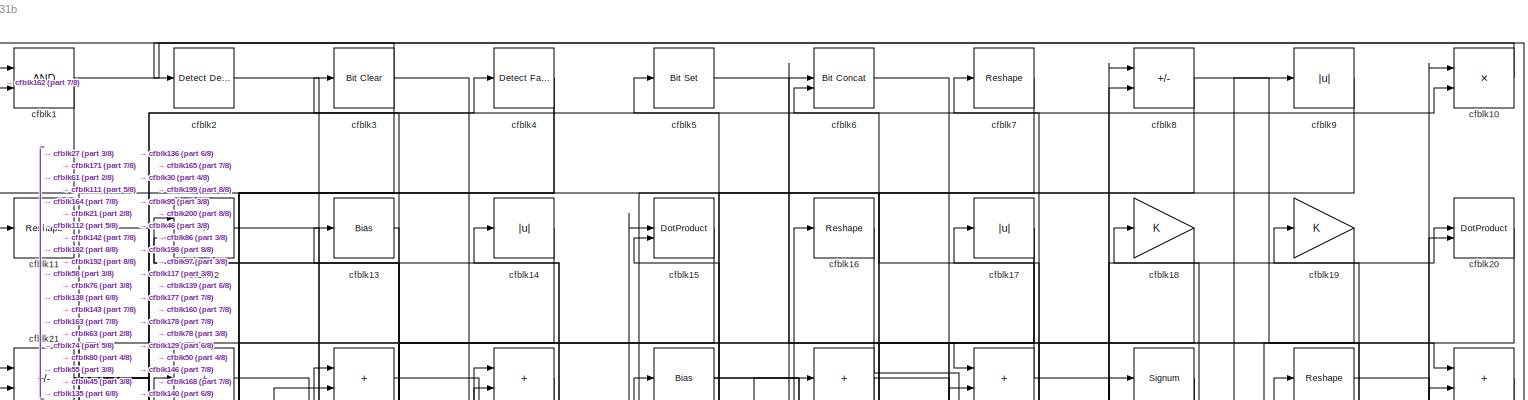
[diagram: root canvas - part 1/8, full width, top band]
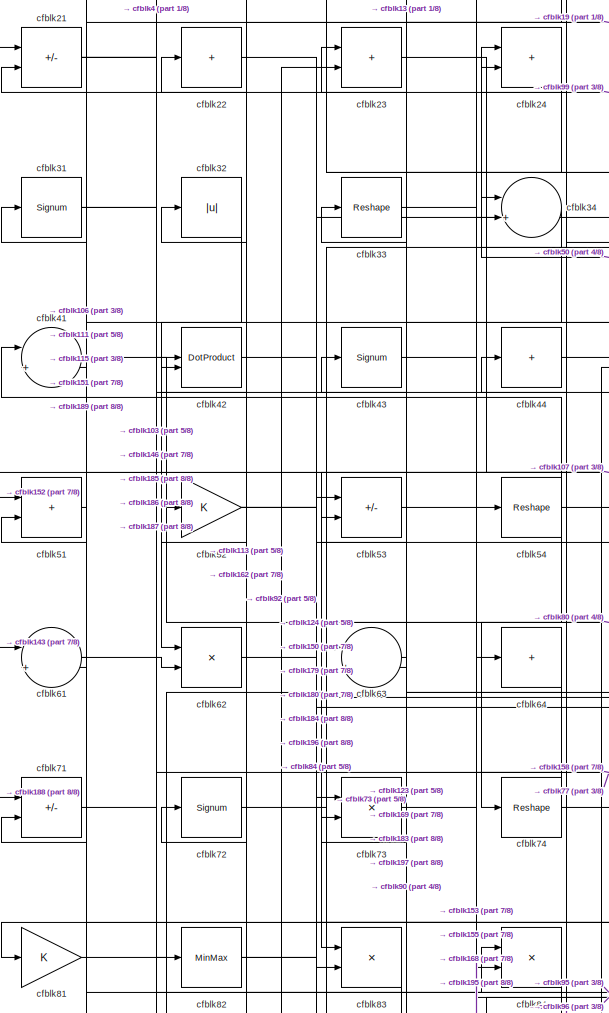
[diagram: root canvas - part 2/8, top left region]
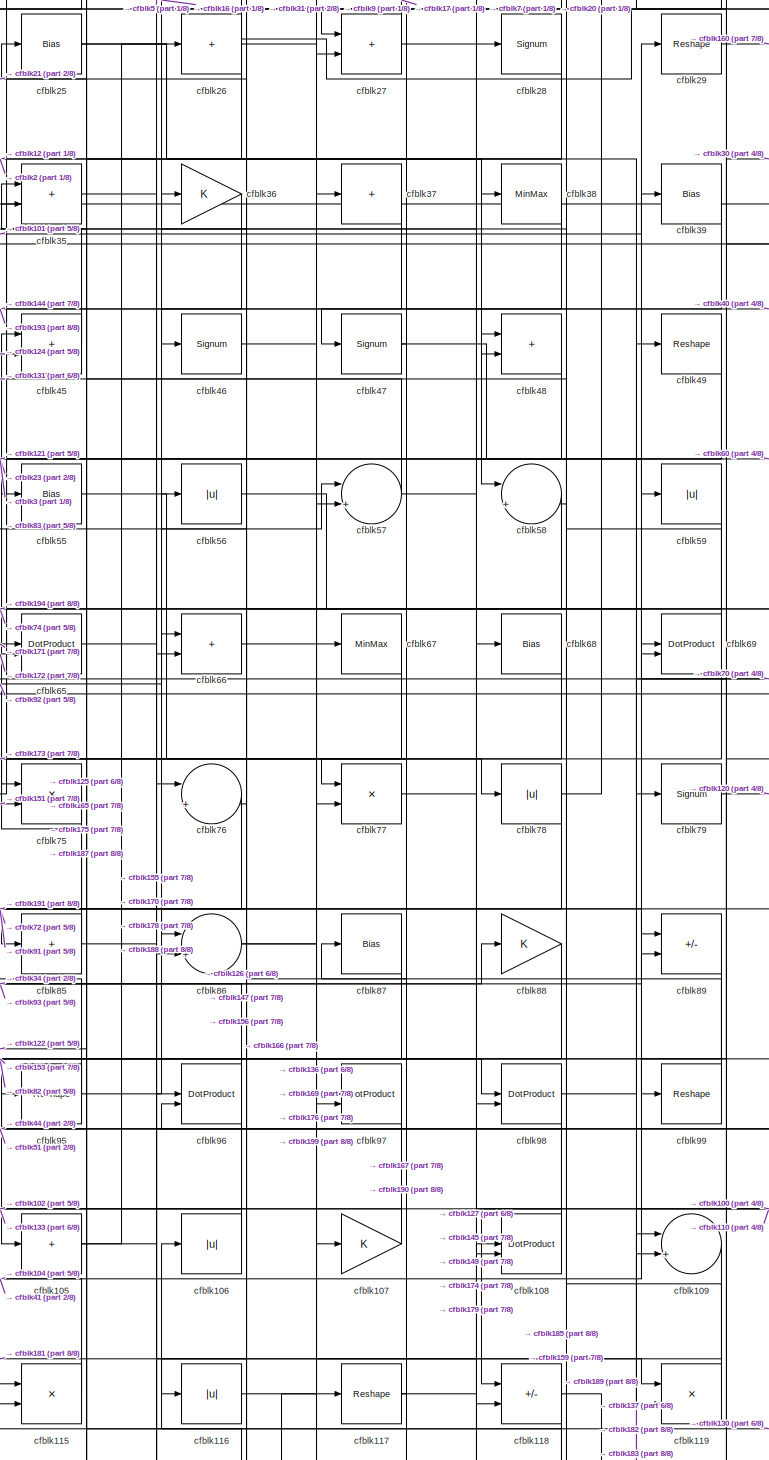
[diagram: root canvas - part 3/8, central region]
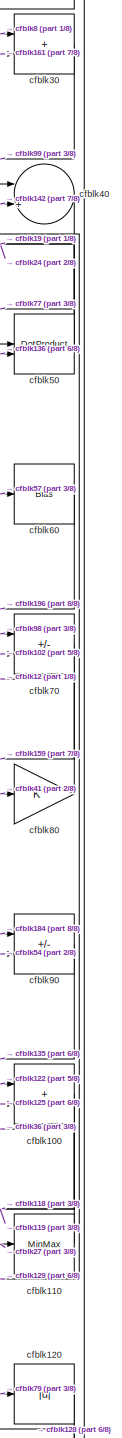
[diagram: root canvas - part 4/8, middle right region]
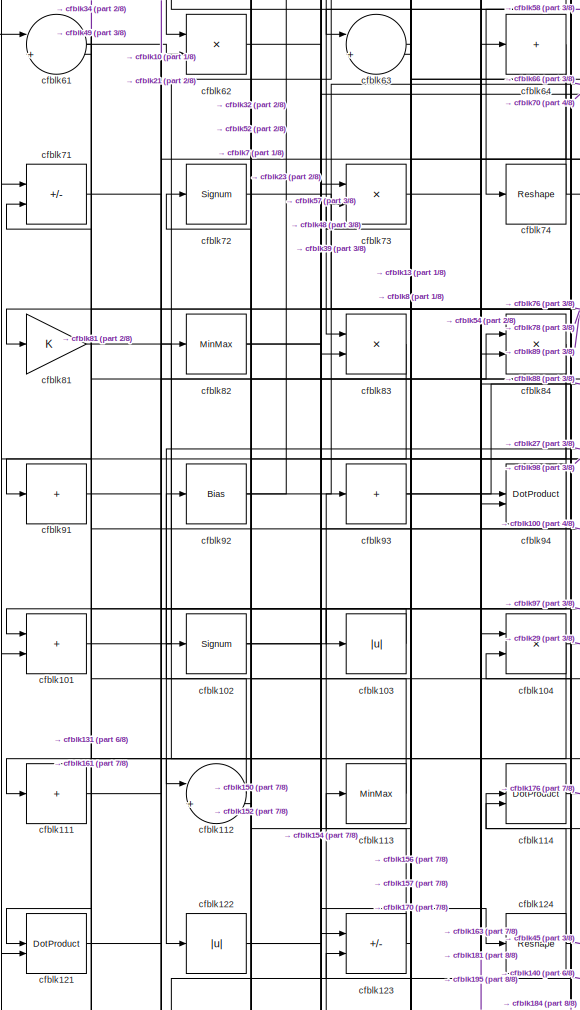
[diagram: root canvas - part 5/8, middle left region]
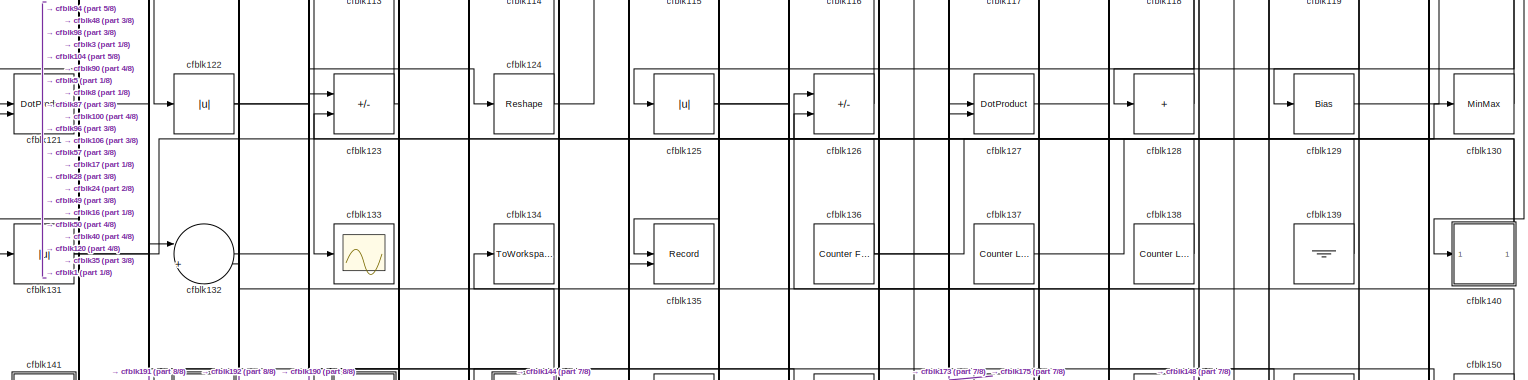
[diagram: root canvas - part 6/8, full width, middle band]
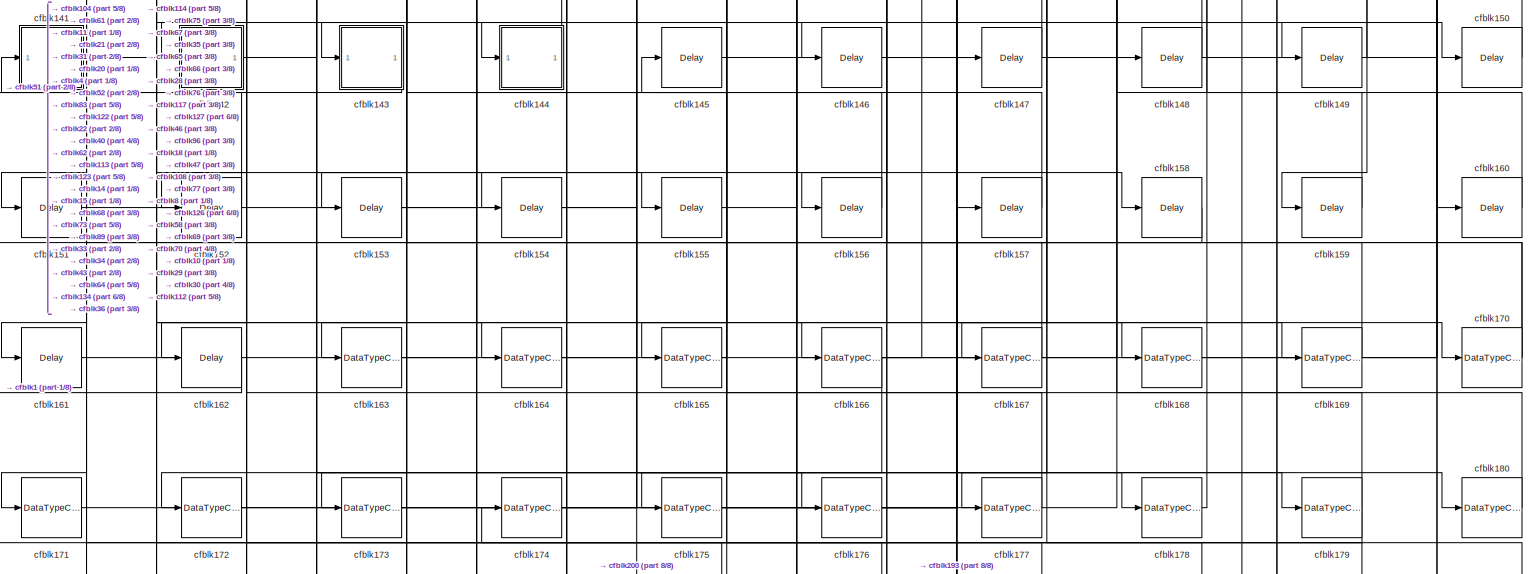
[diagram: root canvas - part 7/8, full width, bottom band]
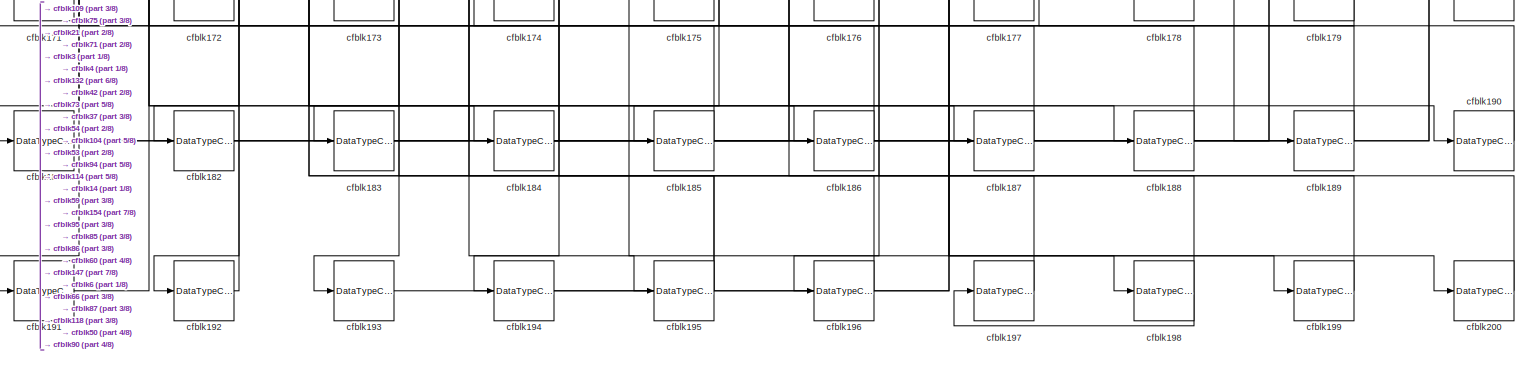
[diagram: root canvas - part 8/8, full width, bottom band]
MODEL slx_69dda77ed31b
KIND model
CONFIG AbsTol = auto
CONFIG EnableMultiTasking = off
CONFIG FixedStep = auto
CONFIG MaxStep = auto
CONFIG MinStep = auto
CONFIG RelTol = 1e-3
CONFIG SampleTimeConstraint = Unconstrained
CONFIG SolverName = VariableStepAuto
CONFIG StartTime = 0.0
CONFIG StopTime = 10.0
BLOCK [Logic] cfblk1
  AllPortsSameDT = off
  OutDataTypeStr = boolean
BLOCK [Product] cfblk10
  Inputs = */
  RndMeth = Zero
  SaturateOnIntegerOverflow = on
BLOCK [Sum] cfblk100
  IconShape = rectangular
BLOCK [Sum] cfblk101
  IconShape = rectangular
BLOCK [Signum] cfblk102
BLOCK [Abs] cfblk103
  SaturateOnIntegerOverflow = off
BLOCK [Product] cfblk104
  Inputs = */
  RndMeth = Zero
  SaturateOnIntegerOverflow = on
BLOCK [Sum] cfblk105
  IconShape = rectangular
  Inputs = +
BLOCK [Abs] cfblk106
  SaturateOnIntegerOverflow = off
BLOCK [Gain] cfblk107
BLOCK [DotProduct] cfblk108
  OutDataTypeStr = Inherit: Inherit via internal rule
BLOCK [Sum] cfblk109
  Inputs = |++
BLOCK [Reshape] cfblk11
BLOCK [MinMax] cfblk110
BLOCK [Sum] cfblk111
  IconShape = rectangular
  Inputs = +
BLOCK [Sum] cfblk112
  Inputs = |++
BLOCK [MinMax] cfblk113
BLOCK [DotProduct] cfblk114
  OutDataTypeStr = Inherit: Inherit via internal rule
BLOCK [Product] cfblk115
  Inputs = */
  RndMeth = Zero
  SaturateOnIntegerOverflow = on
BLOCK [Abs] cfblk116
  SaturateOnIntegerOverflow = off
BLOCK [Reshape] cfblk117
BLOCK [Sum] cfblk118
  IconShape = rectangular
  Inputs = +-
BLOCK [Product] cfblk119
  Inputs = */
  RndMeth = Zero
  SaturateOnIntegerOverflow = on
BLOCK [Sum] cfblk12
  IconShape = rectangular
BLOCK [Abs] cfblk120
  SaturateOnIntegerOverflow = off
BLOCK [DotProduct] cfblk121
  OutDataTypeStr = Inherit: Inherit via internal rule
BLOCK [Abs] cfblk122
  SaturateOnIntegerOverflow = off
BLOCK [Sum] cfblk123
  IconShape = rectangular
  Inputs = +-
BLOCK [Reshape] cfblk124
BLOCK [Abs] cfblk125
  SaturateOnIntegerOverflow = off
BLOCK [Sum] cfblk126
  IconShape = rectangular
  Inputs = +-
BLOCK [DotProduct] cfblk127
  OutDataTypeStr = Inherit: Inherit via internal rule
BLOCK [Sum] cfblk128
  IconShape = rectangular
  Inputs = +
BLOCK [Bias] cfblk129
  Bias = 0.0
  SaturateOnIntegerOverflow = off
BLOCK [Bias] cfblk13
  Bias = 0.0
  SaturateOnIntegerOverflow = off
BLOCK [MinMax] cfblk130
BLOCK [Abs] cfblk131
  SaturateOnIntegerOverflow = off
BLOCK [Sum] cfblk132
  Inputs = |++
BLOCK [Scope] cfblk133
  Floating = off
  NumInputPorts = 1
  ScopeSpecificationString = Simulink.scopes.TimeScopeBlockCfg('CurrentConfiguration', extmgr.ConfigurationSet(extmgr.Configuration('Core','General UI',true),extmgr.Configuration('Core','Source UI',true),extmgr.Configuration('Sources','WiredSimulink',true,'DataLoggingVariableName','ScopeData2','DataLoggingSaveFormat','Array','DataLoggingLimitDataPoints',true,'DataLoggingDecimation','1'),extmgr.Configuration('Visuals','Time Do...<+868ch>
BLOCK [ToWorkspace] cfblk134
  MaxDataPoints = inf
  SampleTime = -1
  SaveFormat = Timeseries
  VariableName = simout
BLOCK [Record] cfblk135
  CompatibilityTag = XY
  FileSettingsInternal = {"entries":[{"content":{"excelSettings":{"content":{},"type":"Streamout.ExcelSettings"}},"type":"Streamout.FileSettingStorage","uuid":""}],"packageUris":["http:\/\/schema.mathworks.com\/mf0\/streamout_blocks\/R2020a"],"version":"1.0"}
  Layout = [1 1]
  SignalsInternal = {"entries":[{"content":{"signals":[{"content":{"blockPath":[],"dimensions":[1],"domain":"","lineColor":"#a2142f","plots":[1],"port":1,"signalID":4646,"signalName":"XY Graph:1"},"type":"RecordBlkView.Signal","uuid":""},{"content":{"blockPath":[],"dimensions":[1],"domain":"","lineColor":"#139fff","plots":[1],"port":2,"signalID":4649,"signalName":"XY Graph:2"},"type":"RecordBlkView.Signal","uuid":""}...<+146ch>
  VisualizationBindings = {"xyplotplugin":{"info":[{"series":[{"bindingParametersList":[{"parameter":"X-Axis","signalID":4646,"signalName":"XY Graph:1"},{"parameter":"Y-Axis","signalID":4649,"signalName":"XY Graph:2"}],"seriesID":29567}],"subplotID":1}]}}
  st = -1
BLOCK [Reference] cfblk136  REF=hdlsllib/Sources/Counter
Free-Running
  SourceBlock = hdlsllib/Sources/Counter\nFree-Running
  SourceType = Counter Free-Running
BLOCK [Reference] cfblk137  REF=hdlsllib/Sources/Counter
Limited
  SourceBlock = hdlsllib/Sources/Counter\nLimited
  SourceType = Counter Limited
BLOCK [Reference] cfblk138  REF=hdlsllib/Sources/Counter
Limited
  SourceBlock = hdlsllib/Sources/Counter\nLimited
  SourceType = Counter Limited
BLOCK [Ground] cfblk139
BLOCK [Abs] cfblk14
  SaturateOnIntegerOverflow = off
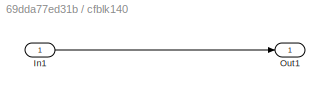
BLOCK [SubSystem] cfblk140
  LibrarySourceBlock = hdlsllib/Ports &\nSubsystems/Subsystem
BLOCK [Inport] cfblk140/In1
BLOCK [Outport] cfblk140/Out1
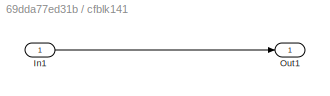
BLOCK [SubSystem] cfblk141
  LibrarySourceBlock = hdlsllib/Ports &\nSubsystems/Subsystem
BLOCK [Inport] cfblk141/In1
BLOCK [Outport] cfblk141/Out1
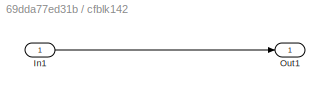
BLOCK [SubSystem] cfblk142
  LibrarySourceBlock = hdlsllib/Ports &\nSubsystems/Subsystem
BLOCK [Inport] cfblk142/In1
BLOCK [Outport] cfblk142/Out1
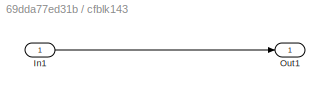
BLOCK [SubSystem] cfblk143
  LibrarySourceBlock = hdlsllib/Ports &\nSubsystems/Subsystem
BLOCK [Inport] cfblk143/In1
BLOCK [Outport] cfblk143/Out1
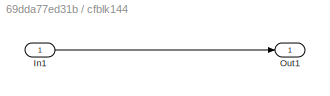
BLOCK [SubSystem] cfblk144
  LibrarySourceBlock = hdlsllib/Ports &\nSubsystems/Subsystem
BLOCK [Inport] cfblk144/In1
BLOCK [Outport] cfblk144/Out1
BLOCK [Delay] cfblk145
  InputPortMap = u0
  SampleTime = 1
BLOCK [Delay] cfblk146
  InputPortMap = u0
  SampleTime = 1
BLOCK [Delay] cfblk147
  InputPortMap = u0
  SampleTime = 1
BLOCK [Delay] cfblk148
  InputPortMap = u0
  SampleTime = 1
BLOCK [Delay] cfblk149
  InputPortMap = u0
  SampleTime = 1
BLOCK [DotProduct] cfblk15
  OutDataTypeStr = Inherit: Inherit via internal rule
BLOCK [Delay] cfblk150
  InputPortMap = u0
  SampleTime = 1
BLOCK [Delay] cfblk151
  InputPortMap = u0
  SampleTime = 1
BLOCK [Delay] cfblk152
  InputPortMap = u0
  SampleTime = 1
BLOCK [Delay] cfblk153
  InputPortMap = u0
  SampleTime = 1
BLOCK [Delay] cfblk154
  InputPortMap = u0
  SampleTime = 1
BLOCK [Delay] cfblk155
  InputPortMap = u0
  SampleTime = 1
BLOCK [Delay] cfblk156
  InputPortMap = u0
  SampleTime = 1
BLOCK [Delay] cfblk157
  InputPortMap = u0
  SampleTime = 1
BLOCK [Delay] cfblk158
  InputPortMap = u0
  SampleTime = 1
BLOCK [Delay] cfblk159
  InputPortMap = u0
  SampleTime = 1
BLOCK [Reshape] cfblk16
BLOCK [Delay] cfblk160
  InputPortMap = u0
  SampleTime = 1
BLOCK [Delay] cfblk161
  InputPortMap = u0
  SampleTime = 1
BLOCK [Delay] cfblk162
  InputPortMap = u0
  SampleTime = 1
BLOCK [DataTypeConversion] cfblk163
  OutDataTypeStr = uint8
  RndMeth = Floor
  SaturateOnIntegerOverflow = off
BLOCK [DataTypeConversion] cfblk164
  OutDataTypeStr = uint8
  RndMeth = Floor
  SaturateOnIntegerOverflow = off
BLOCK [DataTypeConversion] cfblk165
  OutDataTypeStr = uint8
  RndMeth = Floor
  SaturateOnIntegerOverflow = off
BLOCK [DataTypeConversion] cfblk166
  RndMeth = Floor
  SaturateOnIntegerOverflow = off
BLOCK [DataTypeConversion] cfblk167
  OutDataTypeStr = uint8
  RndMeth = Floor
  SaturateOnIntegerOverflow = off
BLOCK [DataTypeConversion] cfblk168
  OutDataTypeStr = uint8
  RndMeth = Floor
  SaturateOnIntegerOverflow = off
BLOCK [DataTypeConversion] cfblk169
  OutDataTypeStr = uint8
  RndMeth = Floor
  SaturateOnIntegerOverflow = off
BLOCK [Abs] cfblk17
  SaturateOnIntegerOverflow = off
BLOCK [DataTypeConversion] cfblk170
  RndMeth = Floor
  SaturateOnIntegerOverflow = off
BLOCK [DataTypeConversion] cfblk171
  OutDataTypeStr = uint8
  RndMeth = Floor
  SaturateOnIntegerOverflow = off
BLOCK [DataTypeConversion] cfblk172
  OutDataTypeStr = uint8
  RndMeth = Floor
  SaturateOnIntegerOverflow = off
BLOCK [DataTypeConversion] cfblk173
  OutDataTypeStr = uint8
  RndMeth = Floor
  SaturateOnIntegerOverflow = off
BLOCK [DataTypeConversion] cfblk174
  OutDataTypeStr = uint8
  RndMeth = Floor
  SaturateOnIntegerOverflow = off
BLOCK [DataTypeConversion] cfblk175
  RndMeth = Floor
  SaturateOnIntegerOverflow = off
BLOCK [DataTypeConversion] cfblk176
  OutDataTypeStr = uint8
  RndMeth = Floor
  SaturateOnIntegerOverflow = off
BLOCK [DataTypeConversion] cfblk177
  OutDataTypeStr = uint8
  RndMeth = Floor
  SaturateOnIntegerOverflow = off
BLOCK [DataTypeConversion] cfblk178
  OutDataTypeStr = uint8
  RndMeth = Floor
  SaturateOnIntegerOverflow = off
BLOCK [DataTypeConversion] cfblk179
  RndMeth = Floor
  SaturateOnIntegerOverflow = off
BLOCK [Gain] cfblk18
BLOCK [DataTypeConversion] cfblk180
  OutDataTypeStr = uint8
  RndMeth = Floor
  SaturateOnIntegerOverflow = off
BLOCK [DataTypeConversion] cfblk181
  RndMeth = Floor
  SaturateOnIntegerOverflow = off
BLOCK [DataTypeConversion] cfblk182
  OutDataTypeStr = uint8
  RndMeth = Floor
  SaturateOnIntegerOverflow = off
BLOCK [DataTypeConversion] cfblk183
  OutDataTypeStr = uint8
  RndMeth = Floor
  SaturateOnIntegerOverflow = off
BLOCK [DataTypeConversion] cfblk184
  RndMeth = Floor
  SaturateOnIntegerOverflow = off
BLOCK [DataTypeConversion] cfblk185
  OutDataTypeStr = uint8
  RndMeth = Floor
  SaturateOnIntegerOverflow = off
BLOCK [DataTypeConversion] cfblk186
  OutDataTypeStr = uint8
  RndMeth = Floor
  SaturateOnIntegerOverflow = off
BLOCK [DataTypeConversion] cfblk187
  OutDataTypeStr = uint8
  RndMeth = Floor
  SaturateOnIntegerOverflow = off
BLOCK [DataTypeConversion] cfblk188
  OutDataTypeStr = uint8
  RndMeth = Floor
  SaturateOnIntegerOverflow = off
BLOCK [DataTypeConversion] cfblk189
  OutDataTypeStr = uint8
  RndMeth = Floor
  SaturateOnIntegerOverflow = off
BLOCK [Gain] cfblk19
BLOCK [DataTypeConversion] cfblk190
  OutDataTypeStr = uint8
  RndMeth = Floor
  SaturateOnIntegerOverflow = off
BLOCK [DataTypeConversion] cfblk191
  OutDataTypeStr = uint8
  RndMeth = Floor
  SaturateOnIntegerOverflow = off
BLOCK [DataTypeConversion] cfblk192
  OutDataTypeStr = uint8
  RndMeth = Floor
  SaturateOnIntegerOverflow = off
BLOCK [DataTypeConversion] cfblk193
  OutDataTypeStr = uint8
  RndMeth = Floor
  SaturateOnIntegerOverflow = off
BLOCK [DataTypeConversion] cfblk194
  OutDataTypeStr = uint8
  RndMeth = Floor
  SaturateOnIntegerOverflow = off
BLOCK [DataTypeConversion] cfblk195
  RndMeth = Floor
  SaturateOnIntegerOverflow = off
BLOCK [DataTypeConversion] cfblk196
  OutDataTypeStr = uint8
  RndMeth = Floor
  SaturateOnIntegerOverflow = off
BLOCK [DataTypeConversion] cfblk197
  OutDataTypeStr = uint8
  RndMeth = Floor
  SaturateOnIntegerOverflow = off
BLOCK [DataTypeConversion] cfblk198
  RndMeth = Floor
  SaturateOnIntegerOverflow = off
BLOCK [DataTypeConversion] cfblk199
  OutDataTypeStr = uint8
  RndMeth = Floor
  SaturateOnIntegerOverflow = off
BLOCK [Reference] cfblk2  REF=simulink/Logic and Bit
Operations/Detect
Decrease
  LibrarySourceBlock = hdlsllib/Logic and Bit\nOperations/Detect\nDecrease
  SourceBlock = simulink/Logic and Bit\nOperations/Detect\nDecrease
  SourceType = Detect Decrease
BLOCK [DotProduct] cfblk20
  OutDataTypeStr = Inherit: Inherit via internal rule
BLOCK [DataTypeConversion] cfblk200
  OutDataTypeStr = uint8
  RndMeth = Floor
  SaturateOnIntegerOverflow = off
BLOCK [Sum] cfblk21
  IconShape = rectangular
  Inputs = +-
BLOCK [Sum] cfblk22
  IconShape = rectangular
  Inputs = +
BLOCK [Sum] cfblk23
  IconShape = rectangular
BLOCK [Sum] cfblk24
  IconShape = rectangular
BLOCK [Bias] cfblk25
  Bias = 0.0
  SaturateOnIntegerOverflow = off
BLOCK [Sum] cfblk26
  IconShape = rectangular
  Inputs = +
BLOCK [Sum] cfblk27
  IconShape = rectangular
BLOCK [Signum] cfblk28
BLOCK [Reshape] cfblk29
BLOCK [Reference] cfblk3  REF=simulink/Logic and Bit
Operations/Bit Clear
  LibrarySourceBlock = hdlsllib/Logic and Bit\nOperations/Bit Clear
  SourceBlock = simulink/Logic and Bit\nOperations/Bit Clear
  SourceType = Bit Clear
BLOCK [Sum] cfblk30
  IconShape = rectangular
BLOCK [Signum] cfblk31
BLOCK [Abs] cfblk32
  SaturateOnIntegerOverflow = off
BLOCK [Reshape] cfblk33
BLOCK [Sum] cfblk34
  Inputs = |++
BLOCK [Sum] cfblk35
  IconShape = rectangular
BLOCK [Gain] cfblk36
BLOCK [Sum] cfblk37
  IconShape = rectangular
  Inputs = +
BLOCK [MinMax] cfblk38
BLOCK [Bias] cfblk39
  Bias = 0.0
  SaturateOnIntegerOverflow = off
BLOCK [Reference] cfblk4  REF=hdlsllib/Logic and Bit
Operations/Detect Fall
Nonpositive
  SourceBlock = hdlsllib/Logic and Bit\nOperations/Detect Fall\nNonpositive
  SourceType = Detect Fall Nonpositive
BLOCK [Sum] cfblk40
  Inputs = |++
BLOCK [Sum] cfblk41
  Inputs = |++
BLOCK [DotProduct] cfblk42
  OutDataTypeStr = Inherit: Inherit via internal rule
BLOCK [Signum] cfblk43
BLOCK [Sum] cfblk44
  IconShape = rectangular
  Inputs = +
BLOCK [Sum] cfblk45
  IconShape = rectangular
BLOCK [Signum] cfblk46
BLOCK [Signum] cfblk47
BLOCK [Sum] cfblk48
  IconShape = rectangular
BLOCK [Reshape] cfblk49
BLOCK [Reference] cfblk5  REF=simulink/Logic and Bit
Operations/Bit Set
  LibrarySourceBlock = hdlsllib/Logic and Bit\nOperations/Bit Set
  SourceBlock = simulink/Logic and Bit\nOperations/Bit Set
  SourceType = Bit Set
BLOCK [DotProduct] cfblk50
  OutDataTypeStr = Inherit: Inherit via internal rule
BLOCK [Sum] cfblk51
  IconShape = rectangular
BLOCK [Gain] cfblk52
BLOCK [Sum] cfblk53
  IconShape = rectangular
  Inputs = +-
BLOCK [Reshape] cfblk54
BLOCK [Bias] cfblk55
  Bias = 0.0
  SaturateOnIntegerOverflow = off
BLOCK [Abs] cfblk56
  SaturateOnIntegerOverflow = off
BLOCK [Sum] cfblk57
  Inputs = |++
BLOCK [Sum] cfblk58
  Inputs = |++
BLOCK [Abs] cfblk59
  SaturateOnIntegerOverflow = off
BLOCK [Reference] cfblk6  REF=hdlsllib/Logic and Bit
Operations/Bit Concat
  SourceBlock = hdlsllib/Logic and Bit\nOperations/Bit Concat
  SourceType = Bit Concat
BLOCK [Bias] cfblk60
  Bias = 0.0
  SaturateOnIntegerOverflow = off
BLOCK [Sum] cfblk61
  Inputs = |++
BLOCK [Product] cfblk62
  Inputs = */
  RndMeth = Zero
  SaturateOnIntegerOverflow = on
BLOCK [Sum] cfblk63
  Inputs = |++
BLOCK [Sum] cfblk64
  IconShape = rectangular
  Inputs = +
BLOCK [DotProduct] cfblk65
  OutDataTypeStr = Inherit: Inherit via internal rule
BLOCK [Sum] cfblk66
  IconShape = rectangular
BLOCK [MinMax] cfblk67
BLOCK [Bias] cfblk68
  Bias = 0.0
  SaturateOnIntegerOverflow = off
BLOCK [DotProduct] cfblk69
  OutDataTypeStr = Inherit: Inherit via internal rule
BLOCK [Reshape] cfblk7
BLOCK [Sum] cfblk70
  IconShape = rectangular
  Inputs = +-
BLOCK [Sum] cfblk71
  IconShape = rectangular
  Inputs = +-
BLOCK [Signum] cfblk72
BLOCK [Product] cfblk73
  Inputs = */
  RndMeth = Zero
  SaturateOnIntegerOverflow = on
BLOCK [Reshape] cfblk74
BLOCK [Product] cfblk75
  Inputs = */
  RndMeth = Zero
  SaturateOnIntegerOverflow = on
BLOCK [Sum] cfblk76
  Inputs = |++
BLOCK [Product] cfblk77
  Inputs = */
  RndMeth = Zero
  SaturateOnIntegerOverflow = on
BLOCK [Abs] cfblk78
  SaturateOnIntegerOverflow = off
BLOCK [Signum] cfblk79
BLOCK [Sum] cfblk8
  IconShape = rectangular
  Inputs = +-
BLOCK [Gain] cfblk80
BLOCK [Gain] cfblk81
BLOCK [MinMax] cfblk82
BLOCK [Product] cfblk83
  Inputs = */
  RndMeth = Zero
  SaturateOnIntegerOverflow = on
BLOCK [Product] cfblk84
  Inputs = */
  RndMeth = Zero
  SaturateOnIntegerOverflow = on
BLOCK [Sum] cfblk85
  IconShape = rectangular
  Inputs = +
BLOCK [Sum] cfblk86
  Inputs = |++
BLOCK [Bias] cfblk87
  Bias = 0.0
  SaturateOnIntegerOverflow = off
BLOCK [Gain] cfblk88
BLOCK [Sum] cfblk89
  IconShape = rectangular
  Inputs = +-
BLOCK [Abs] cfblk9
  SaturateOnIntegerOverflow = off
BLOCK [Sum] cfblk90
  IconShape = rectangular
  Inputs = +-
BLOCK [Sum] cfblk91
  IconShape = rectangular
  Inputs = +
BLOCK [Bias] cfblk92
  Bias = 0.0
  SaturateOnIntegerOverflow = off
BLOCK [Sum] cfblk93
  IconShape = rectangular
  Inputs = +
BLOCK [DotProduct] cfblk94
  OutDataTypeStr = Inherit: Inherit via internal rule
BLOCK [Reshape] cfblk95
BLOCK [DotProduct] cfblk96
  OutDataTypeStr = Inherit: Inherit via internal rule
BLOCK [DotProduct] cfblk97
  OutDataTypeStr = Inherit: Inherit via internal rule
BLOCK [DotProduct] cfblk98
  OutDataTypeStr = Inherit: Inherit via internal rule
BLOCK [Reshape] cfblk99
NET cfblk100:1 -> cfblk118:1, cfblk119:2
LINE cfblk101:1 -> cfblk39:1
NET cfblk102:1 -> cfblk70:2, cfblk93:1
LINE cfblk103:1 -> cfblk101:1
NET cfblk104:1 -> cfblk161:1, cfblk29:1
NET cfblk105:1 -> cfblk118:2, cfblk26:1
LINE cfblk106:1 -> cfblk51:2
LINE cfblk107:1 -> cfblk44:1
LINE cfblk108:1 -> cfblk56:1
LINE cfblk109:1 -> cfblk181:1
LINE cfblk10:1 -> cfblk2:1
LINE cfblk110:1 -> cfblk36:1
LINE cfblk111:1 -> cfblk10:2
LINE cfblk112:1 -> cfblk92:1
LINE cfblk113:1 -> cfblk32:1
LINE cfblk114:1 -> cfblk176:1
LINE cfblk115:1 -> cfblk41:2
LINE cfblk116:1 -> cfblk97:1
NET cfblk117:1 -> cfblk20:1, cfblk7:1
NET cfblk118:1 -> cfblk185:1, cfblk189:1
LINE cfblk119:1 -> cfblk48:1
LINE cfblk11:1 -> cfblk164:1
LINE cfblk120:1 -> cfblk128:1
LINE cfblk121:1 -> cfblk82:1
NET cfblk122:1 -> cfblk100:1, cfblk154:1
NET cfblk123:1 -> cfblk23:1, cfblk52:1
NET cfblk124:1 -> cfblk114:1, cfblk45:2
NET cfblk125:1 -> cfblk100:2, cfblk96:1
LINE cfblk126:1 -> cfblk106:1
LINE cfblk127:1 -> cfblk28:1
LINE cfblk128:1 -> cfblk24:2
LINE cfblk129:1 -> cfblk40:1
LINE cfblk12:1 -> cfblk76:1
LINE cfblk130:1 -> cfblk35:1
NET cfblk131:1 -> cfblk130:1, cfblk48:2
LINE cfblk132:1 -> cfblk190:1
NET cfblk136:1 -> cfblk50:2, cfblk57:2, cfblk5:1
LINE cfblk137:1 -> cfblk49:1
LINE cfblk138:1 -> cfblk3:1
LINE cfblk139:1 -> cfblk17:1
LINE cfblk13:1 -> cfblk63:1
LINE cfblk140/In1:1 -> cfblk140/Out1:1
NET cfblk140:1 -> cfblk104:2, cfblk126:1
LINE cfblk141/In1:1 -> cfblk141/Out1:1
LINE cfblk141:1 -> cfblk166:1
LINE cfblk142/In1:1 -> cfblk142/Out1:1
LINE cfblk142:1 -> cfblk40:2
LINE cfblk143/In1:1 -> cfblk143/Out1:1
LINE cfblk143:1 -> cfblk61:1
LINE cfblk144/In1:1 -> cfblk144/Out1:1
LINE cfblk144:1 -> cfblk134:1
LINE cfblk145:1 -> cfblk108:2
LINE cfblk146:1 -> cfblk10:1
LINE cfblk147:1 -> cfblk96:2
LINE cfblk148:1 -> cfblk126:2
LINE cfblk149:1 -> cfblk69:2
LINE cfblk14:1 -> cfblk143:1
LINE cfblk150:1 -> cfblk112:2
LINE cfblk151:1 -> cfblk75:2
LINE cfblk152:1 -> cfblk51:1
LINE cfblk153:1 -> cfblk34:2
LINE cfblk154:1 -> cfblk200:1
LINE cfblk155:1 -> cfblk66:2
LINE cfblk156:1 -> cfblk73:2
LINE cfblk157:1 -> cfblk123:2
LINE cfblk158:1 -> cfblk21:1
LINE cfblk159:1 -> cfblk58:2
LINE cfblk15:1 -> cfblk163:1
LINE cfblk160:1 -> cfblk8:1
LINE cfblk161:1 -> cfblk30:2
LINE cfblk162:1 -> cfblk1:2
LINE cfblk163:1 -> cfblk64:1
LINE cfblk164:1 -> cfblk15:1
LINE cfblk165:1 -> cfblk15:2
NET cfblk166:1 -> cfblk117:1, cfblk148:1, cfblk172:1
LINE cfblk167:1 -> cfblk141:1
LINE cfblk168:1 -> cfblk20:2
LINE cfblk169:1 -> cfblk33:1
LINE cfblk16:1 -> cfblk129:1
NET cfblk170:1 -> cfblk113:1, cfblk76:2
LINE cfblk171:1 -> cfblk65:1
LINE cfblk172:1 -> cfblk65:2
LINE cfblk173:1 -> cfblk127:2
LINE cfblk174:1 -> cfblk68:1
NET cfblk175:1 -> cfblk127:1, cfblk157:1
LINE cfblk176:1 -> cfblk67:1
LINE cfblk177:1 -> cfblk145:1
LINE cfblk178:1 -> cfblk18:1
NET cfblk179:1 -> cfblk108:1, cfblk174:1
NET cfblk17:1 -> cfblk86:1, cfblk97:2
LINE cfblk180:1 -> cfblk22:1
NET cfblk181:1 -> cfblk86:2, cfblk94:1
LINE cfblk182:1 -> cfblk109:1
LINE cfblk183:1 -> cfblk109:2
NET cfblk184:1 -> cfblk114:2, cfblk50:1, cfblk90:1
LINE cfblk185:1 -> cfblk42:1
LINE cfblk186:1 -> cfblk42:2
LINE cfblk187:1 -> cfblk95:1
LINE cfblk188:1 -> cfblk71:1
LINE cfblk189:1 -> cfblk71:2
LINE cfblk18:1 -> cfblk177:1
LINE cfblk190:1 -> cfblk87:1
LINE cfblk191:1 -> cfblk132:1
LINE cfblk192:1 -> cfblk132:2
LINE cfblk193:1 -> cfblk147:1
LINE cfblk194:1 -> cfblk37:1
NET cfblk195:1 -> cfblk104:1, cfblk73:1
LINE cfblk196:1 -> cfblk53:1
LINE cfblk197:1 -> cfblk53:2
NET cfblk198:1 -> cfblk14:1, cfblk197:1
LINE cfblk199:1 -> cfblk6:1
LINE cfblk19:1 -> cfblk61:2
NET cfblk1:1 -> cfblk11:1, cfblk140:1
LINE cfblk200:1 -> cfblk6:2
LINE cfblk20:1 -> cfblk142:1
NET cfblk21:1 -> cfblk103:1, cfblk146:1, cfblk186:1, cfblk4:1
LINE cfblk22:1 -> cfblk179:1
LINE cfblk23:1 -> cfblk107:1
LINE cfblk24:1 -> cfblk63:2
NET cfblk25:1 -> cfblk38:1, cfblk79:1
NET cfblk26:1 -> cfblk119:1, cfblk85:1
NET cfblk27:1 -> cfblk110:1, cfblk122:1
NET cfblk28:1 -> cfblk156:1, cfblk165:1
LINE cfblk29:1 -> cfblk160:1
LINE cfblk2:1 -> cfblk58:1
LINE cfblk30:1 -> cfblk99:1
NET cfblk31:1 -> cfblk158:1, cfblk77:2
LINE cfblk32:1 -> cfblk62:1
LINE cfblk33:1 -> cfblk168:1
LINE cfblk34:1 -> cfblk111:1
LINE cfblk35:1 -> cfblk178:1
LINE cfblk36:1 -> cfblk144:1
LINE cfblk37:1 -> cfblk193:1
LINE cfblk38:1 -> cfblk116:1
LINE cfblk39:1 -> cfblk47:1
NET cfblk3:1 -> cfblk192:1, cfblk1:1, cfblk55:1
LINE cfblk40:1 -> cfblk77:1
LINE cfblk41:1 -> cfblk80:1
LINE cfblk42:1 -> cfblk184:1
LINE cfblk43:1 -> cfblk155:1
LINE cfblk44:1 -> cfblk115:1
LINE cfblk45:1 -> cfblk12:2
LINE cfblk46:1 -> cfblk169:1
NET cfblk47:1 -> cfblk167:1, cfblk59:1
LINE cfblk48:1 -> cfblk83:1
NET cfblk49:1 -> cfblk121:1, cfblk121:2
NET cfblk4:1 -> cfblk171:1, cfblk182:1
NET cfblk50:1 -> cfblk19:1, cfblk24:1
LINE cfblk51:1 -> cfblk81:1
NET cfblk52:1 -> cfblk124:1, cfblk162:1, cfblk180:1, cfblk84:2
LINE cfblk53:1 -> cfblk195:1
NET cfblk54:1 -> cfblk183:1, cfblk41:1, cfblk90:2
LINE cfblk55:1 -> cfblk78:1
LINE cfblk56:1 -> cfblk69:1
NET cfblk57:1 -> cfblk25:1, cfblk60:1
LINE cfblk58:1 -> cfblk74:1
LINE cfblk59:1 -> cfblk194:1
LINE cfblk5:1 -> cfblk27:1
LINE cfblk60:1 -> cfblk196:1
NET cfblk61:1 -> cfblk151:1, cfblk62:2
LINE cfblk62:1 -> cfblk150:1
LINE cfblk63:1 -> cfblk43:1
LINE cfblk64:1 -> cfblk94:2
LINE cfblk65:1 -> cfblk170:1
LINE cfblk66:1 -> cfblk199:1
LINE cfblk67:1 -> cfblk175:1
LINE cfblk68:1 -> cfblk173:1
NET cfblk69:1 -> cfblk35:2, cfblk75:1
LINE cfblk6:1 -> cfblk198:1
LINE cfblk70:1 -> cfblk159:1
LINE cfblk71:1 -> cfblk187:1
LINE cfblk72:1 -> cfblk89:1
LINE cfblk73:1 -> cfblk54:1
NET cfblk74:1 -> cfblk13:1, cfblk8:2
LINE cfblk75:1 -> cfblk191:1
LINE cfblk76:1 -> cfblk83:2
LINE cfblk77:1 -> cfblk149:1
NET cfblk78:1 -> cfblk91:1, cfblk9:1
LINE cfblk79:1 -> cfblk120:1
LINE cfblk7:1 -> cfblk112:1
LINE cfblk80:1 -> cfblk12:1
LINE cfblk81:1 -> cfblk123:1
NET cfblk82:1 -> cfblk57:1, cfblk98:1
LINE cfblk83:1 -> cfblk152:1
LINE cfblk84:1 -> cfblk101:2
NET cfblk85:1 -> cfblk188:1, cfblk45:1
NET cfblk86:1 -> cfblk27:2, cfblk98:2
LINE cfblk87:1 -> cfblk125:1
LINE cfblk88:1 -> cfblk105:1
LINE cfblk89:1 -> cfblk153:1
NET cfblk8:1 -> cfblk135:1, cfblk30:1
LINE cfblk90:1 -> cfblk135:2
LINE cfblk91:1 -> cfblk84:1
NET cfblk92:1 -> cfblk23:2, cfblk66:1
NET cfblk93:1 -> cfblk88:1, cfblk89:2
NET cfblk94:1 -> cfblk131:1, cfblk72:1
NET cfblk95:1 -> cfblk16:1, cfblk31:1
NET cfblk96:1 -> cfblk115:2, cfblk34:1
LINE cfblk97:1 -> cfblk102:1
NET cfblk98:1 -> cfblk133:1, cfblk70:1
LINE cfblk99:1 -> cfblk21:2
LINE cfblk9:1 -> cfblk46:1
note: NET lines group one-source signal fan-out (src -> all destinations, sorted); 1:1 wires keep LINE
